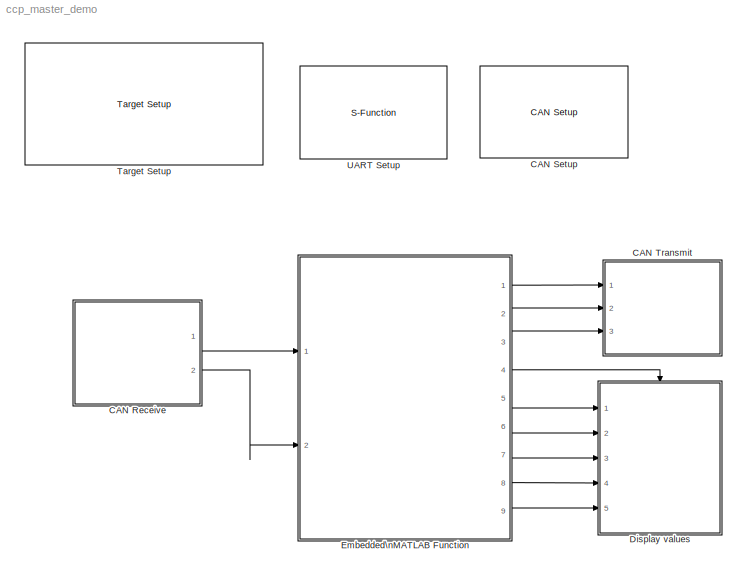
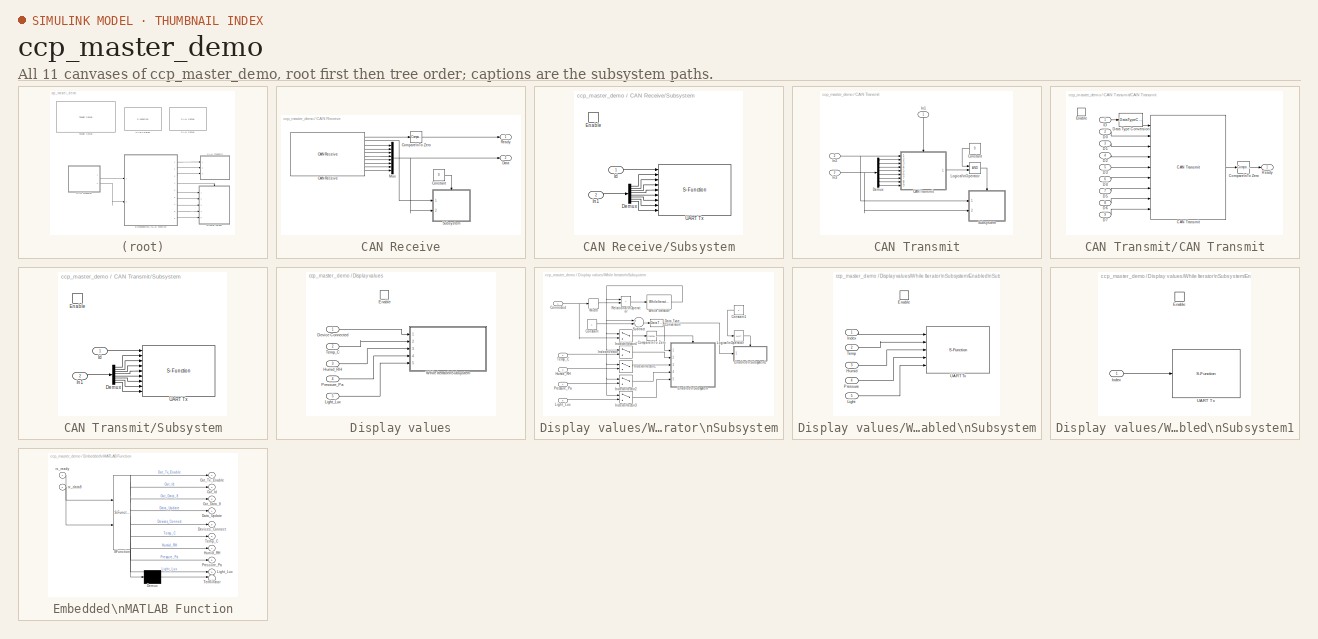
[diagram: thumbnail index - all 11 canvases of the model, root first then tree order]
MODEL ccp_master_demo
KIND model
CONFIG PreLoadFcn = waijung.modelPreload; % Required for working with Waijung Blockset. Do not remove.
BLOCK [SubSystem] CAN Receive
  FunctionWithSeparateData = off
  MaskHideContents = off
  MinAlgLoopOccurrences = off
  Opaque = off
  Ports = [0, 2]
  PropExecContextOutsideSubsystem = off
  RTWSystemCode = Auto
  RequestExecContextInheritance = off
BLOCK [Reference] CAN Receive/CAN Receive  REF=stm32f0_can_lib/CAN Receive
  Ports = [0, 10]
  SourceBlock = stm32f0_can_lib/CAN Receive
  SourceType = stm32f0_can
  blockid = CANReceiveCANReceive
  buffersize = 8
  canmodule = 1
  compat = 0
  conf = Rx
  confstr = [\"Standard\",\"Mask\",\"0\",\"0\",\"off\",\"uint8\",\"uint8\",\"uint8\",\"uint8\",\"uint8\",\"uint8\",\"uint8\",\"uint8\",\"8\",\"0\",\"0\",\"0\",\"4\"]
  data0type = uint8
  data1type = uint8
  data2type = uint8
  data3type = uint8
  data4type = uint8
  data5type = uint8
  data6type = uint8
  data7type = uint8
  datatype = single
  enableisr = off
  filtertype = Mask
  id = 0
  idmask = 0
  idtype = Standard
  inputarray = []
  inputlabelarray = {}
  outputarray = [ 5, 7, 3, 3, 3, 3, 3, 3, 3, 3]
  outputlabelarray = { 'Msg Pending','ID', 'D0 (uint8)', 'D1 (uint8)', 'D2 (uint8)', 'D3 (uint8)', 'D4 (uint8)', 'D5 (uint8)', 'D6 (uint8)', 'D7 (uint8)' }
  sampletime = 0.01
  sampletimestr = 0.01
  usedlc = off
BLOCK [Reference] CAN Receive/Compare\nTo Zero  REF=simulink/Logic and Bit\nOperations/Compare\nTo Zero
  FunctionWithSeparateData = off
  LogicOutDataTypeMode = uint8
  Ports = [1, 1]
  RTWMemSecDataConstants = Inherit from model
  RTWMemSecDataInternal = Inherit from model
  RTWMemSecDataParameters = Inherit from model
  RTWMemSecFuncExecute = Inherit from model
  RTWMemSecFuncInitTerm = Inherit from model
  ShowPortLabels = FromPortIcon
  SourceBlock = simulink/Logic and Bit\nOperations/Compare\nTo Zero
  SourceType = Compare To Zero
  SystemSampleTime = -1
  ZeroCross = off
  relop = ~=
BLOCK [Constant] CAN Receive/Constant
  OutDataType = fixdt(1, 16)
  OutDataTypeMode = uint8
  OutDataTypeStr = uint8
  OutScaling = 2^0
  Value = 0
BLOCK [Outport] CAN Receive/Data
  IconDisplay = Port number
  Port = 2
BLOCK [Mux] CAN Receive/Mux
  DisplayOption = bar
  Inputs = 8
  Ports = [8, 1]
BLOCK [Outport] CAN Receive/Ready
  IconDisplay = Port number
BLOCK [SubSystem] CAN Receive/Subsystem
  FunctionWithSeparateData = off
  MaskHideContents = off
  MinAlgLoopOccurrences = off
  Opaque = off
  Ports = [2, 0, 1]
  PropExecContextOutsideSubsystem = off
  RTWSystemCode = Auto
  RequestExecContextInheritance = off
BLOCK [Demux] CAN Receive/Subsystem/Demux
  DisplayOption = bar
  Outputs = 8
  Ports = [1, 8]
BLOCK [EnablePort] CAN Receive/Subsystem/Enable
  Ports = []
BLOCK [Inport] CAN Receive/Subsystem/Id
  IconDisplay = Port number
BLOCK [Inport] CAN Receive/Subsystem/In1
  IconDisplay = Port number
  Port = 2
BLOCK [S-Function] CAN Receive/Subsystem/UART Tx
  EnableBusSupport = off
  FunctionName = stm32f0_uart
  MaskCallbackString = stm32f0_uart_callback('conf');|stm32f0_uart_callback('uartmodule');|||||||stm32f0_uart_callback('flowcontrol');|||stm32f0_uart_callback('advanceoptions');|||stm32f0_uart_callback('conf');|stm32f0_uart_callback('conf');|stm32f0_uart_callback('binheader');|stm32f0_uart_callback('binterminator');|||||||||stm32f0_uart_callback('asciiformat');|||stm32f0_uart_callback('storagename');|||stm32f0_uart_call...<+176ch>  <repeated x5 — deduplicated; at blocks: UART Tx, UART Setup>
  MaskDescription = UART Module\n - Select module corresponding to \"UART Setup\" block.\nTransfer\n - Blocking: after write DMA buffer, the block wait until buffer empty.\n - Non-Blocking: the block will not wait for buffer empty.\nPacket mode:\n - Ascii: sending data is ascii, Ascii format + End of packet.\n - Binary: sending data is binary format, Header + Data + Terminator\n - String Buffer: Volatile Data Storage...<+256ch>  <repeated x4 — deduplicated; at blocks: UART Tx>
  MaskDisplay = text(0.95, 0.5, 'Module: USART1_Tx\\nPacket: Ascii\\nTransfer: Non-Blocking\\nTs (sec): 0.01','ver','middle','hor','right'); port_label('input', 1,'%u'); port_label('input', 2,'%X'); port_label('input', 3,'%X'); port_label('input', 4,'%X'); port_label('input', 5,'%X'); port_label('input', 6,'%X'); port_label('input', 7,'%X'); port_label('input', 8,'%X'); port_label('input', 9,'%X');
  MaskEnableString = on,on,on,on,on,on,on,on,on,off,off,on,on,on,on,on,on,on,on,on,on,on,on,on,on,on,on,on,on,on,on,on,on,on,on,on,on,off,on,on,on,on,on,on,on,on,on,on,on,on
  MaskHelp = web(fullfile(waijungdocroot,'stm32f0_uart_tx.htm'), '-browser')
  MaskIconFrame = on
  MaskIconOpaque = on
  MaskIconRotate = none
  MaskIconUnits = normalized
  MaskInitialization = stm32f0_uart_callback('init');
  MaskPortRotate = default
  MaskPromptString = Configuration|UART Module|Baud rate (bps)|Data bits|Parity|Stop bit|Tx pin|Rx pin|Hardware flow control|HW Flow control, CTS Pin|HW Flow control, RTS Pin|Advance options|Rx buffer size (bytes)|Tx buffer size (bytes)|Transfer|Packet mode|Binary header (example: '7E 7E')|Binary terminator (example: '03 03')|Number of data port, type DOUBLE|Number of data port, type SINGLE|Number of data port, type I...<+631ch>  <repeated x5 — deduplicated; at blocks: UART Tx, UART Setup>
  MaskSelfModifiable = on
  MaskStyleString = popup(Setup|Tx|Rx),popup(1|2|3|4),edit,popup(8),popup(No|Odd|Even),popup(0.5|1|1.5|2),popup(Not used|A9|B6),popup(Not used|A10|B7),popup(None|RTS|CTS|RTS/CTS),popup(Not used|A11),popup(Not used|A12),checkbox,popup(16|32|64|128|256|512),popup(16|32|64|128|256|512),popup(Blocking|Non-Blocking),popup(Ascii|Binary|String Buffer),edit,edit,edit,edit,edit,edit,edit,edit,edit,edit,edit,popup(CR (0x0D - \...<+259ch>  <repeated x5 — deduplicated; at blocks: UART Tx, UART Setup>
  MaskTabNameString = ,,,,,,,,,,,,,,,,,,,,,,,,,,,,,,,,,,,,,,,,,,,,,,,,,
  MaskToolTipString = on,on,on,on,on,on,on,on,on,on,on,on,on,on,on,on,on,on,on,on,on,on,on,on,on,on,on,on,on,on,on,on,on,on,on,on,on,on,on,on,on,on,on,on,on,on,on,on,on,on
  MaskTunableValueString = off,off,off,off,off,off,off,off,off,off,off,off,off,off,off,off,off,off,off,off,off,off,off,off,off,off,off,off,off,off,off,off,off,off,off,off,off,off,off,off,off,off,off,off,off,off,off,off,off,off  <repeated x5 — deduplicated; at blocks: UART Tx, UART Setup>
  MaskType = stm32f0_uart
  MaskValueString = Tx|1|115200|8|No|1|A9|A10|None|Not used|Not used|off|64|64|Non-Blocking|Ascii|'7E 7E'|'03 03'|0|0|0|0|0|0|0|2|'Rx, Id=%u: %X,%X,%X,%X,%X,%X,%X,%X'|CR (0x0D - \"\\r\")|CRLF (0x0D 0x0A - \"<path>")|<empty>||Rx, Id=%u: %X,%X,%X,%X,%X,%X,%X,%X\\r\\n|inf|off|de|fff,ff,sdfsd|0|CANReceiveSubsystemUARTTx|[ -1 -1 -1 -1 -1 -1 -1 -1 -1]|[]|{ '%u' '%X' '%X' '%X' '%X' '%X' '%X' '%X' '%X'}|[]|[]|{}|0|[\"1\", \...<+358ch>
  MaskVarAliasString = ,,,,,,,,,,,,,,,,,,,,,,,,,,,,,,,,,,,,,,,,,,,,,,,,,
  MaskVariables = conf=&1;uartmodule=&2;baudrate=@3;databits=@4;parity=&5;stopbit=&6;remaptxpin=&7;remaprxpin=&8;flowcontrol=&9;remapctspin=&10;remaprtspin=&11;advanceoptions=@12;rxbuffersize=@13;txbuffersize=@14;transfer=&15;packetmode=&16;binheader=&17;binterminator=&18;porttype_double=@19;porttype_single=@20;porttype_int8=@21;porttype_uint8=@22;porttype_int16=@23;porttype_uint16=@24;porttype_int32=@25;porttype_u...<+445ch>  <repeated x5 — deduplicated; at blocks: UART Tx, UART Setup>
  MaskVisibilityString = off,on,off,off,off,off,off,off,off,off,off,off,off,off,on,on,off,off,off,off,off,off,off,off,off,off,on,off,on,off,off,off,on,on,off,off,off,off,off,off,off,off,off,off,off,off,off,off,off,off  <repeated x4 — deduplicated; at blocks: UART Tx>
  Parameters = conf,inputporttype,inputportwidth,outputporttype,outputportwidth,asciiheader,optionstring,headerstring,terminatorstring,asciidatatypestring,sampletime,blockid
  Ports = [9]
BLOCK [Reference] CAN Setup  REF=stm32f0_can_lib/CAN Setup
  Ports = []
  SourceBlock = stm32f0_can_lib/CAN Setup
  SourceType = stm32f0_can
  advance = off
  autoretransmission = Disable
  bitrate = 250000
  bitrate_select = 250000
  blockid = CANSetup
  brp = 8
  bs1 = 15tq
  bs2 = 8tq
  canmodule = 1
  compat = 0
  conf = Setup
  confstr = [\"250000\",\"8\",\"B\",\"9\",\"B\",\"8\",\"1tq\",\"15tq\",\"8tq\",\"ENABLE\"]
  inputarray = []
  inputlabelarray = {}
  lastmodule = 1
  outputarray = []
  outputlabelarray = {}
  presc = 8
  remaprxpin = B8
  remaptxpin = B9
  rxpinstr = 8
  rxportstr = B
  sampletime = -1
  sampletimestr = 0.001
  sjw = 1tq
  timingconf = Prescaler
  tq = 1.6667e-007
  txpinstr = 9
  txportstr = B
BLOCK [SubSystem] CAN Transmit
  FunctionWithSeparateData = off
  MaskHideContents = off
  MinAlgLoopOccurrences = off
  Opaque = off
  Ports = [3]
  PropExecContextOutsideSubsystem = off
  RTWSystemCode = Auto
  RequestExecContextInheritance = off
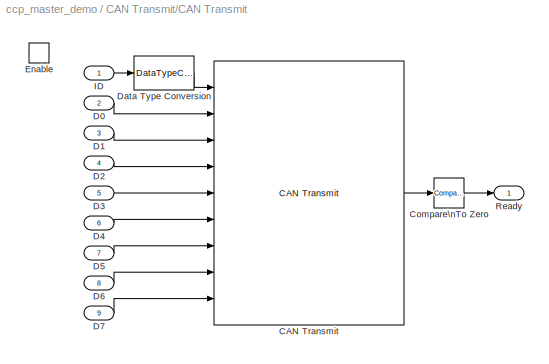
BLOCK [SubSystem] CAN Transmit/CAN Transmit
  FunctionWithSeparateData = off
  MaskHideContents = off
  MinAlgLoopOccurrences = off
  Opaque = off
  Ports = [9, 1, 1]
  PropExecContextOutsideSubsystem = off
  RTWSystemCode = Auto
  RequestExecContextInheritance = off
BLOCK [Reference] CAN Transmit/CAN Transmit/CAN Transmit  REF=stm32f0_can_lib/CAN Transmit
  Ports = [9, 1]
  SourceBlock = stm32f0_can_lib/CAN Transmit
  SourceType = stm32f0_can
  blockid = CANTransmitCANTransmitCANTransmit
  canmodule = 1
  compat = 0
  conf = Tx
  confstr = [\"Blocking\",\"0.5\",\"Standard\",\"off\",\"0\",\"on\",\"8\",\"on\",\"uint8\",\"uint8\",\"uint8\",\"uint8\",\"uint8\",\"uint8\",\"uint8\",\"uint8\"]
  data0type = uint8
  data1type = uint8
  data2type = uint8
  data3type = uint8
  data4type = uint8
  data5type = uint8
  data6type = uint8
  data7type = uint8
  datatype = single
  dlc = 8
  enablestatus = on
  id = 0
  idtype = Standard
  inputarray = [ -1, 3, 3, 3, 3, 3, 3, 3, 3]
  inputlabelarray = { 'ID', 'D0 (uint8)', 'D1 (uint8)', 'D2 (uint8)', 'D3 (uint8)', 'D4 (uint8)', 'D5 (uint8)', 'D6 (uint8)', 'D7 (uint8)' }
  outputarray = [7]
  outputlabelarray = {'Status'}
  sampletime = -1
  sampletimestr = 0.01
  specificdlc = on
  specificid = off
  timeout = 0.5
  transfer = Blocking
BLOCK [Reference] CAN Transmit/CAN Transmit/Compare\nTo Zero  REF=simulink/Logic and Bit\nOperations/Compare\nTo Zero
  FunctionWithSeparateData = off
  LogicOutDataTypeMode = uint8
  Ports = [1, 1]
  RTWMemSecDataConstants = Inherit from model
  RTWMemSecDataInternal = Inherit from model
  RTWMemSecDataParameters = Inherit from model
  RTWMemSecFuncExecute = Inherit from model
  RTWMemSecFuncInitTerm = Inherit from model
  ShowPortLabels = FromPortIcon
  SourceBlock = simulink/Logic and Bit\nOperations/Compare\nTo Zero
  SourceType = Compare To Zero
  SystemSampleTime = -1
  ZeroCross = off
  relop = ==
BLOCK [Inport] CAN Transmit/CAN Transmit/D0
  IconDisplay = Port number
  Port = 2
BLOCK [Inport] CAN Transmit/CAN Transmit/D1
  IconDisplay = Port number
  Port = 3
BLOCK [Inport] CAN Transmit/CAN Transmit/D2
  IconDisplay = Port number
  Port = 4
BLOCK [Inport] CAN Transmit/CAN Transmit/D3
  IconDisplay = Port number
  Port = 5
BLOCK [Inport] CAN Transmit/CAN Transmit/D4
  IconDisplay = Port number
  Port = 6
BLOCK [Inport] CAN Transmit/CAN Transmit/D5
  IconDisplay = Port number
  Port = 7
BLOCK [Inport] CAN Transmit/CAN Transmit/D6
  IconDisplay = Port number
  Port = 8
BLOCK [Inport] CAN Transmit/CAN Transmit/D7
  IconDisplay = Port number
  Port = 9
BLOCK [DataTypeConversion] CAN Transmit/CAN Transmit/Data Type Conversion
  OutDataType = fixdt(1, 16)
  OutScaling = 2^0
  RndMeth = Floor
  SaturateOnIntegerOverflow = off
BLOCK [EnablePort] CAN Transmit/CAN Transmit/Enable
  Ports = []
BLOCK [Inport] CAN Transmit/CAN Transmit/ID
  IconDisplay = Port number
BLOCK [Outport] CAN Transmit/CAN Transmit/Ready
  IconDisplay = Port number
  OutDataType = fixdt(1, 16)
  OutScaling = 2^0
BLOCK [Constant] CAN Transmit/Constant
  OutDataType = fixdt(1, 16)
  OutDataTypeMode = uint8
  OutDataTypeStr = uint8
  OutScaling = 2^0
  Value = 0
BLOCK [Demux] CAN Transmit/Demux
  DisplayOption = bar
  Outputs = 8
  Ports = [1, 8]
BLOCK [Inport] CAN Transmit/In1
  IconDisplay = Port number
BLOCK [Inport] CAN Transmit/In2
  IconDisplay = Port number
  Port = 2
BLOCK [Inport] CAN Transmit/In3
  IconDisplay = Port number
  Port = 3
BLOCK [Logic] CAN Transmit/Logical\nOperator
  AllPortsSameDT = off
  LogicDataType = fixdt(0, 8)
  OutDataTypeMode = boolean
  OutDataTypeStr = boolean
  Ports = [2, 1]
BLOCK [SubSystem] CAN Transmit/Subsystem
  FunctionWithSeparateData = off
  MaskHideContents = off
  MinAlgLoopOccurrences = off
  Opaque = off
  Ports = [2, 0, 1]
  PropExecContextOutsideSubsystem = off
  RTWSystemCode = Auto
  RequestExecContextInheritance = off
BLOCK [Demux] CAN Transmit/Subsystem/Demux
  DisplayOption = bar
  Outputs = 8
  Ports = [1, 8]
BLOCK [EnablePort] CAN Transmit/Subsystem/Enable
  Ports = []
BLOCK [Inport] CAN Transmit/Subsystem/Id
  IconDisplay = Port number
BLOCK [Inport] CAN Transmit/Subsystem/In1
  IconDisplay = Port number
  Port = 2
BLOCK [S-Function] CAN Transmit/Subsystem/UART Tx
  EnableBusSupport = off
  FunctionName = stm32f0_uart
  MaskDisplay = text(0.95, 0.5, 'Module: USART1_Tx\\nPacket: Ascii\\nTransfer: Non-Blocking\\nTs (sec): 0.01','ver','middle','hor','right'); port_label('input', 1,'%u'); port_label('input', 2,'%X'); port_label('input', 3,'%X'); port_label('input', 4,'%X'); port_label('input', 5,'%X'); port_label('input', 6,'%X'); port_label('input', 7,'%X'); port_label('input', 8,'%X'); port_label('input', 9,'%X');
  MaskEnableString = on,on,on,on,on,on,on,on,on,off,off,on,on,on,on,on,on,on,on,on,on,on,on,on,on,on,on,on,on,on,on,on,on,on,on,on,on,off,on,on,on,on,on,on,on,on,on,on,on,on
  MaskHelp = web(fullfile(waijungdocroot,'stm32f0_uart_tx.htm'), '-browser')
  MaskIconFrame = on
  MaskIconOpaque = on
  MaskIconRotate = none
  MaskIconUnits = normalized
  MaskInitialization = stm32f0_uart_callback('init');
  MaskPortRotate = default
  MaskSelfModifiable = on
  MaskTabNameString = ,,,,,,,,,,,,,,,,,,,,,,,,,,,,,,,,,,,,,,,,,,,,,,,,,
  MaskToolTipString = on,on,on,on,on,on,on,on,on,on,on,on,on,on,on,on,on,on,on,on,on,on,on,on,on,on,on,on,on,on,on,on,on,on,on,on,on,on,on,on,on,on,on,on,on,on,on,on,on,on
  MaskType = stm32f0_uart
  MaskValueString = Tx|1|115200|8|No|1|A9|A10|None|Not used|Not used|off|64|64|Non-Blocking|Ascii|'7E 7E'|'03 03'|0|0|0|0|0|0|0|2|'Tx, Id=%u: %X,%X,%X,%X,%X,%X,%X,%X'|CR (0x0D - \"\\r\")|CRLF (0x0D 0x0A - \"<path>")|<empty>||Tx, Id=%u: %X,%X,%X,%X,%X,%X,%X,%X\\r\\n|inf|off|de|fff,ff,sdfsd|0|CANTransmitSubsystemUARTTx|[ -1 -1 -1 -1 -1 -1 -1 -1 -1]|[]|{ '%u' '%X' '%X' '%X' '%X' '%X' '%X' '%X' '%X'}|[]|[]|{}|0|[\"1\", ...<+359ch>
  MaskVarAliasString = ,,,,,,,,,,,,,,,,,,,,,,,,,,,,,,,,,,,,,,,,,,,,,,,,,
  Parameters = conf,inputporttype,inputportwidth,outputporttype,outputportwidth,asciiheader,optionstring,headerstring,terminatorstring,asciidatatypestring,sampletime,blockid
  Ports = [9]
BLOCK [SubSystem] Display values
  FunctionWithSeparateData = off
  MaskHideContents = off
  MinAlgLoopOccurrences = off
  Opaque = off
  Ports = [5, 0, 1]
  PropExecContextOutsideSubsystem = off
  RTWSystemCode = Auto
  RequestExecContextInheritance = off
  TreatAsAtomicUnit = on
BLOCK [Inport] Display values/Device Connected
  IconDisplay = Port number
  OutDataType = fixdt(1, 16)
  OutScaling = 2^0
BLOCK [EnablePort] Display values/Enable
  Ports = []
BLOCK [Inport] Display values/Humid_RH
  IconDisplay = Port number
  OutDataType = fixdt(1, 16)
  OutScaling = 2^0
  Port = 3
BLOCK [Inport] Display values/Light_Lux
  IconDisplay = Port number
  OutDataType = fixdt(1, 16)
  OutScaling = 2^0
  Port = 5
BLOCK [Inport] Display values/Pressure_Pa
  IconDisplay = Port number
  OutDataType = fixdt(1, 16)
  OutScaling = 2^0
  Port = 4
BLOCK [Inport] Display values/Temp_C
  IconDisplay = Port number
  OutDataType = fixdt(1, 16)
  OutScaling = 2^0
  Port = 2
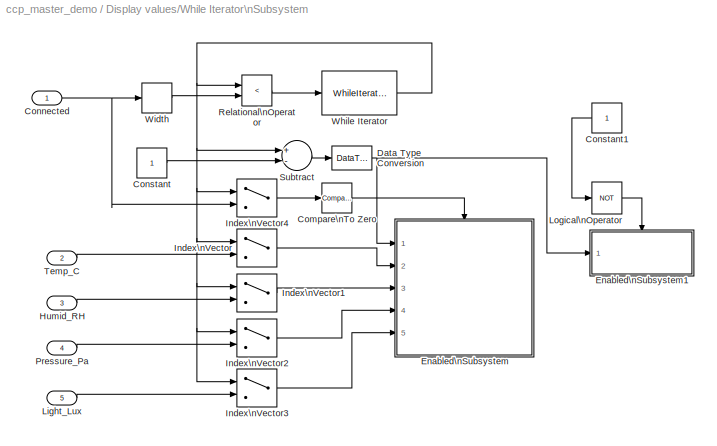
BLOCK [SubSystem] Display values/While Iterator\nSubsystem
  FunctionWithSeparateData = off
  MaskHideContents = off
  MinAlgLoopOccurrences = off
  Opaque = off
  Ports = [5]
  PropExecContextOutsideSubsystem = off
  RTWSystemCode = Auto
  RequestExecContextInheritance = off
  TreatAsAtomicUnit = on
BLOCK [Reference] Display values/While Iterator\nSubsystem/Compare\nTo Zero  REF=simulink/Logic and Bit\nOperations/Compare\nTo Zero
  FunctionWithSeparateData = off
  LogicOutDataTypeMode = uint8
  Ports = [1, 1]
  RTWMemSecDataConstants = Inherit from model
  RTWMemSecDataInternal = Inherit from model
  RTWMemSecDataParameters = Inherit from model
  RTWMemSecFuncExecute = Inherit from model
  RTWMemSecFuncInitTerm = Inherit from model
  ShowPortLabels = FromPortIcon
  SourceBlock = simulink/Logic and Bit\nOperations/Compare\nTo Zero
  SourceType = Compare To Zero
  SystemSampleTime = -1
  ZeroCross = off
  relop = >
BLOCK [Inport] Display values/While Iterator\nSubsystem/Connected
  IconDisplay = Port number
  OutDataType = fixdt(1, 16)
  OutScaling = 2^0
BLOCK [Constant] Display values/While Iterator\nSubsystem/Constant
  OutDataType = fixdt(1, 16)
  OutDataTypeMode = int8
  OutDataTypeStr = int8
  OutScaling = 2^0
BLOCK [Constant] Display values/While Iterator\nSubsystem/Constant1
  OutDataType = fixdt(1, 16)
  OutDataTypeMode = uint8
  OutDataTypeStr = uint8
  OutScaling = 2^0
BLOCK [DataTypeConversion] Display values/While Iterator\nSubsystem/Data Type Conversion
  OutDataType = fixdt(1, 16)
  OutScaling = 2^0
  RndMeth = Floor
  SaturateOnIntegerOverflow = off
BLOCK [SubSystem] Display values/While Iterator\nSubsystem/Enabled\nSubsystem
  FunctionWithSeparateData = off
  MaskHideContents = off
  MinAlgLoopOccurrences = off
  Opaque = off
  Ports = [5, 0, 1]
  PropExecContextOutsideSubsystem = off
  RTWSystemCode = Auto
  RequestExecContextInheritance = off
  TreatAsAtomicUnit = on
BLOCK [EnablePort] Display values/While Iterator\nSubsystem/Enabled\nSubsystem/Enable
  Ports = []
BLOCK [Inport] Display values/While Iterator\nSubsystem/Enabled\nSubsystem/Humid
  IconDisplay = Port number
  OutDataType = fixdt(1, 16)
  OutScaling = 2^0
  Port = 3
BLOCK [Inport] Display values/While Iterator\nSubsystem/Enabled\nSubsystem/Index
  IconDisplay = Port number
  OutDataType = fixdt(1, 16)
  OutScaling = 2^0
BLOCK [Inport] Display values/While Iterator\nSubsystem/Enabled\nSubsystem/Light
  IconDisplay = Port number
  OutDataType = fixdt(1, 16)
  OutScaling = 2^0
  Port = 5
BLOCK [Inport] Display values/While Iterator\nSubsystem/Enabled\nSubsystem/Pressure
  IconDisplay = Port number
  OutDataType = fixdt(1, 16)
  OutScaling = 2^0
  Port = 4
BLOCK [Inport] Display values/While Iterator\nSubsystem/Enabled\nSubsystem/Temp
  IconDisplay = Port number
  OutDataType = fixdt(1, 16)
  OutScaling = 2^0
  Port = 2
BLOCK [S-Function] Display values/While Iterator\nSubsystem/Enabled\nSubsystem/UART Tx
  EnableBusSupport = off
  FunctionName = stm32f0_uart
  MaskDisplay = text(0.95, 0.5, 'Module: USART1_Tx\\nPacket: Ascii\\nTransfer: Non-Blocking\\nTs (sec): -1','ver','middle','hor','right'); port_label('input', 1,'%u'); port_label('input', 2,'%f'); port_label('input', 3,'%f'); port_label('input', 4,'%f'); port_label('input', 5,'%f');
  MaskEnableString = on,on,on,on,on,on,on,on,on,off,off,on,on,on,on,on,on,on,on,on,on,on,on,on,on,on,on,on,on,on,on,on,on,on,on,on,on,off,on,on,on,on,on,on,on,on,on,on,on,on
  MaskHelp = web(fullfile(waijungdocroot,'stm32f0_uart_tx.htm'), '-browser')
  MaskIconFrame = on
  MaskIconOpaque = on
  MaskIconRotate = none
  MaskIconUnits = normalized
  MaskInitialization = stm32f0_uart_callback('init');
  MaskPortRotate = default
  MaskSelfModifiable = on
  MaskTabNameString = ,,,,,,,,,,,,,,,,,,,,,,,,,,,,,,,,,,,,,,,,,,,,,,,,,
  MaskToolTipString = on,on,on,on,on,on,on,on,on,on,on,on,on,on,on,on,on,on,on,on,on,on,on,on,on,on,on,on,on,on,on,on,on,on,on,on,on,on,on,on,on,on,on,on,on,on,on,on,on,on
  MaskType = stm32f0_uart
  MaskValueString = Tx|1|115200|8|No|1|A9|A10|None|Not used|Not used|off|64|64|Non-Blocking|Ascii|'7E 7E'|'03 03'|0|0|0|0|0|0|0|2|'Device %u: Temp=%1.2fC, Humid=%1.2f%%, Pressure=%1.2fPa, Light=%1.2fLux'|CR (0x0D - \"\\r\")|CRLF (0x0D 0x0A - \"<path>")|<empty>||Device %u: Temp=%1.2fC, Humid=%1.2f%%, Pressure=%1.2fPa, Light=%1.2fLux\\r\\n|inf|off|de|fff,ff,sdfsd|0|DisplayvaluesWhileIteratorSubsystemEnabledSubsystemUA...<+368ch>
  MaskVarAliasString = ,,,,,,,,,,,,,,,,,,,,,,,,,,,,,,,,,,,,,,,,,,,,,,,,,
  Parameters = conf,inputporttype,inputportwidth,outputporttype,outputportwidth,asciiheader,optionstring,headerstring,terminatorstring,asciidatatypestring,sampletime,blockid
  Ports = [5]
BLOCK [SubSystem] Display values/While Iterator\nSubsystem/Enabled\nSubsystem1
  FunctionWithSeparateData = off
  MaskHideContents = off
  MinAlgLoopOccurrences = off
  Opaque = off
  Ports = [1, 0, 1]
  PropExecContextOutsideSubsystem = off
  RTWSystemCode = Auto
  RequestExecContextInheritance = off
  TreatAsAtomicUnit = on
BLOCK [EnablePort] Display values/While Iterator\nSubsystem/Enabled\nSubsystem1/Enable
  Ports = []
BLOCK [Inport] Display values/While Iterator\nSubsystem/Enabled\nSubsystem1/Index
  IconDisplay = Port number
  OutDataType = fixdt(1, 16)
  OutScaling = 2^0
BLOCK [S-Function] Display values/While Iterator\nSubsystem/Enabled\nSubsystem1/UART Tx
  EnableBusSupport = off
  FunctionName = stm32f0_uart
  MaskDisplay = text(0.95, 0.5, 'Module: USART1_Tx\\nPacket: Ascii\\nTransfer: Non-Blocking\\nTs (sec): -1','ver','middle','hor','right'); port_label('input', 1,'%u');
  MaskEnableString = on,on,on,on,on,on,on,on,on,off,off,on,on,on,on,on,on,on,on,on,on,on,on,on,on,on,on,on,on,on,on,on,on,on,on,on,on,off,on,on,on,on,on,on,on,on,on,on,on,on
  MaskHelp = web(fullfile(waijungdocroot,'stm32f0_uart_tx.htm'), '-browser')
  MaskIconFrame = on
  MaskIconOpaque = on
  MaskIconRotate = none
  MaskIconUnits = normalized
  MaskInitialization = stm32f0_uart_callback('init');
  MaskPortRotate = default
  MaskSelfModifiable = on
  MaskTabNameString = ,,,,,,,,,,,,,,,,,,,,,,,,,,,,,,,,,,,,,,,,,,,,,,,,,
  MaskToolTipString = on,on,on,on,on,on,on,on,on,on,on,on,on,on,on,on,on,on,on,on,on,on,on,on,on,on,on,on,on,on,on,on,on,on,on,on,on,on,on,on,on,on,on,on,on,on,on,on,on,on
  MaskType = stm32f0_uart
  MaskValueString = Tx|1|115200|8|No|1|A9|A10|None|Not used|Not used|off|64|64|Non-Blocking|Ascii|'7E 7E'|'03 03'|0|0|0|0|0|0|0|2|'Device %u: Error or disconnected'|CR (0x0D - \"\\r\")|CRLF (0x0D 0x0A - \"<path>")|<empty>||Device %u: Error or disconnected\\r\\n|inf|off|de|fff,ff,sdfsd|0|DisplayvaluesWhileIteratorSubsystemEnabledSubsystem1UARTTx|[ -1]|[]|{ '%u'}|[]|[]|{}|0|[\"1\", \"1\", \"A\", \"9\", \"1\", \"A\", \...<+219ch>
  MaskVarAliasString = ,,,,,,,,,,,,,,,,,,,,,,,,,,,,,,,,,,,,,,,,,,,,,,,,,
  Parameters = conf,inputporttype,inputportwidth,outputporttype,outputportwidth,asciiheader,optionstring,headerstring,terminatorstring,asciidatatypestring,sampletime,blockid
  Ports = [1]
BLOCK [Inport] Display values/While Iterator\nSubsystem/Humid_RH
  IconDisplay = Port number
  OutDataType = fixdt(1, 16)
  OutScaling = 2^0
  Port = 3
BLOCK [MultiPortSwitch] Display values/While Iterator\nSubsystem/Index\nVector
  InputSameDT = off
  Inputs = 1
  OutDataType = fixdt(1, 16)
  OutScaling = 2^0
  Ports = [2, 1]
  SaturateOnIntegerOverflow = off
BLOCK [MultiPortSwitch] Display values/While Iterator\nSubsystem/Index\nVector1
  InputSameDT = off
  Inputs = 1
  OutDataType = fixdt(1, 16)
  OutScaling = 2^0
  Ports = [2, 1]
  SaturateOnIntegerOverflow = off
BLOCK [MultiPortSwitch] Display values/While Iterator\nSubsystem/Index\nVector2
  InputSameDT = off
  Inputs = 1
  OutDataType = fixdt(1, 16)
  OutScaling = 2^0
  Ports = [2, 1]
  SaturateOnIntegerOverflow = off
BLOCK [MultiPortSwitch] Display values/While Iterator\nSubsystem/Index\nVector3
  InputSameDT = off
  Inputs = 1
  OutDataType = fixdt(1, 16)
  OutScaling = 2^0
  Ports = [2, 1]
  SaturateOnIntegerOverflow = off
BLOCK [MultiPortSwitch] Display values/While Iterator\nSubsystem/Index\nVector4
  InputSameDT = off
  Inputs = 1
  OutDataType = fixdt(1, 16)
  OutScaling = 2^0
  Ports = [2, 1]
  SaturateOnIntegerOverflow = off
BLOCK [Inport] Display values/While Iterator\nSubsystem/Light_Lux
  IconDisplay = Port number
  OutDataType = fixdt(1, 16)
  OutScaling = 2^0
  Port = 5
BLOCK [Logic] Display values/While Iterator\nSubsystem/Logical\nOperator
  AllPortsSameDT = off
  LogicDataType = fixdt(0, 8)
  Operator = NOT
  OutDataTypeMode = boolean
  OutDataTypeStr = boolean
  Ports = [1, 1]
BLOCK [Inport] Display values/While Iterator\nSubsystem/Pressure_Pa
  IconDisplay = Port number
  OutDataType = fixdt(1, 16)
  OutScaling = 2^0
  Port = 4
BLOCK [RelationalOperator] Display values/While Iterator\nSubsystem/Relational\nOperator
  InputSameDT = off
  LogicDataType = fixdt(0, 8)
  LogicOutDataTypeMode = boolean
  Operator = <
  OutDataTypeStr = boolean
BLOCK [Sum] Display values/While Iterator\nSubsystem/Subtract
  InputSameDT = off
  Inputs = +-
  OutDataType = fixdt(1, 16)
  OutDataTypeMode = Inherit via internal rule
  OutDataTypeStr = Inherit: Inherit via internal rule
  OutScaling = 2^-10
  Ports = [2, 1]
  SaturateOnIntegerOverflow = off
BLOCK [Inport] Display values/While Iterator\nSubsystem/Temp_C
  IconDisplay = Port number
  OutDataType = fixdt(1, 16)
  OutScaling = 2^0
  Port = 2
BLOCK [WhileIterator] Display values/While Iterator\nSubsystem/While Iterator
  MaxIters = 32
  OutputDataType = int8
  Ports = [1, 1]
  ShowIterationPort = on
  WhileBlockType = do-while
BLOCK [Width] Display values/While Iterator\nSubsystem/Width
  DataType = int8
BLOCK [SubSystem] Embedded\nMATLAB Function
  FunctionWithSeparateData = off
  MaskDescription = Embedded MATLAB block
  MaskDisplay = disp('fcn');
  MaskHideContents = off
  MaskIconFrame = on
  MaskIconOpaque = off
  MaskIconRotate = none
  MaskIconUnits = autoscale
  MaskPortRotate = default
  MaskSelfModifiable = on
  MaskType = Stateflow
  MinAlgLoopOccurrences = off
  Opaque = off
  PermitHierarchicalResolution = ExplicitOnly
  Ports = [2, 9]
  PropExecContextOutsideSubsystem = off
  RTWSystemCode = Auto
  RequestExecContextInheritance = off
BLOCK [Demux] Embedded\nMATLAB Function/ Demux 
  Outputs = 1
  Ports = [1, 1]
BLOCK [S-Function] Embedded\nMATLAB Function/ SFunction 
  EnableBusSupport = on
  FunctionName = sf_sfun
  PortCounts = [2 10]
  Ports = [2, 10]
  Tag = Stateflow S-Function ccp_master_demo 2
BLOCK [Terminator] Embedded\nMATLAB Function/ Terminator 
BLOCK [Outport] Embedded\nMATLAB Function/Data_Update
  IconDisplay = Port number
  Port = 4
BLOCK [Outport] Embedded\nMATLAB Function/Devices_Connect
  IconDisplay = Port number
  Port = 5
BLOCK [Outport] Embedded\nMATLAB Function/Humid_RH
  IconDisplay = Port number
  Port = 7
BLOCK [Outport] Embedded\nMATLAB Function/Light_Lux
  IconDisplay = Port number
  Port = 9
BLOCK [Outport] Embedded\nMATLAB Function/Out_Data_8
  IconDisplay = Port number
  Port = 3
BLOCK [Outport] Embedded\nMATLAB Function/Out_Id
  IconDisplay = Port number
  Port = 2
BLOCK [Outport] Embedded\nMATLAB Function/Out_Tx_Enable
  IconDisplay = Port number
  OutDataType = sfix(16)
  OutScaling = 2^0
BLOCK [Outport] Embedded\nMATLAB Function/Pressure_Pa
  IconDisplay = Port number
  Port = 8
BLOCK [Outport] Embedded\nMATLAB Function/Temp_C
  IconDisplay = Port number
  Port = 6
BLOCK [Inport] Embedded\nMATLAB Function/rx_data8
  IconDisplay = Port number
  Port = 2
BLOCK [Inport] Embedded\nMATLAB Function/rx_ready
  IconDisplay = Port number
  OutDataType = sfix(16)
  OutScaling = 2^0
BLOCK [Reference] Target Setup  REF=stm32f0_device_config_lib/Target Setup
  Ports = []
  Priority = 100
  SourceBlock = stm32f0_device_config_lib/Target Setup
  SourceType = stm32f0_target_setup
  assemblercontrolstr = $(patsubst %, -I%, .) -mcpu=cortex-m0 -mtune=cortex-m0 -mthumb -Wall -O3 -Wa,-amhls=$(<:.s=.lst) -D__STACK_SIZE=$(STACK_SIZE) -D__HEAP_SIZE=$(HEAP_SIZE)
  blockid = TargetSetup
  clockconfig = STM32F072B-DISCO Default (HSIOSC-8MHz/HCLK-48MHz)
  compiler = GNU ARM
  compilercontrolstr = $(patsubst %, -I%, .) -mcpu=cortex-m0 -mthumb -mabi=aapcs -Wall -O3 -mfloat-abi=soft -ffunction-sections -fdata-sections -fno-strict-aliasing -fno-builtin --short-enums
  editctrlstr = off
  enableautocompiledownload = on
  execprofile = None
  flashlength = 128k
  flashorigin = 0x8000000
  fullchiperase = off
  hclk = 48000000
  heapsize = 0x200
  hseval = 8000000
  lastprofileruart = 3
  linkercontrolstr = -T$(LD_SCRIPT) -Wl,-Map=$(MAP),--cref,--no-warn-mismatch -mcpu=cortex-m0 -mthumb  -Wall -O3 -mabi=aapcs -lc -specs=nosys.specs
  manualsetsampletime = on
  mcu = STM32F072CB (LQFP48)
  mcustr = STM32F072CB
  previous_compiler = GNU ARM
  profilerbaud = 500000
  profilerinitstr = 0.001,48000000,48000,500000,0
  profilertxpin = Not used
  profileruart = 3
  programmerinterface = aMG USB Connect
  ramlength = 16k
  ramorigin = 0x20000000
  runafterdownload = on
  sampletime = 0.001
  showmemoryconfiguration = off
  stacksize = 0x400
  stdlib = STM32F072
  system_stm32f0xx_c_path = <path>
  systickreloadvalue = 48000
  useextram = off
BLOCK [S-Function] UART Setup
  EnableBusSupport = off
  FunctionName = stm32f0_uart
  MaskDescription = Default configuration for aMG USB Connect board:\n - UART module: 1\n - Tx pin: A9\n - Rx pin: A10\n\nAdvance options\n - Rx buffer size (bytes): max packet length can be received via DMA.\n - Tx buffer size (bytes): max packet length can be transmit via DMA.
  MaskDisplay = text(0.5, 0.5, 'Module: USART1_Setup\\nBaud (Bps): 1000000\\nDMA Buffer: 64/64\\nTx/Rx Pin: A9/A10','ver','middle','hor','center');
  MaskEnableString = on,on,on,on,on,on,on,on,on,off,off,on,on,on,on,on,on,on,on,on,on,on,on,on,on,on,on,on,on,on,on,on,on,on,on,on,on,off,on,on,on,on,on,on,on,on,on,on,on,on
  MaskHelp = web(fullfile(waijungdocroot,'stm32f0_uart_setup.htm'), '-browser')
  MaskIconFrame = on
  MaskIconOpaque = on
  MaskIconRotate = none
  MaskIconUnits = normalized
  MaskInitialization = stm32f0_uart_callback('init');
  MaskPortRotate = default
  MaskSelfModifiable = on
  MaskTabNameString = ,,,,,,,,,,,,,,,,,,,,,,,,,,,,,,,,,,,,,,,,,,,,,,,,,
  MaskToolTipString = on,on,on,on,on,on,on,on,on,on,on,on,on,on,on,on,on,on,on,on,on,on,on,on,on,on,on,on,on,on,on,on,on,on,on,on,on,on,on,on,on,on,on,on,on,on,on,on,on,on
  MaskType = stm32f0_uart
  MaskValueString = Setup|1|1000000|8|No|1|A9|A10|None|Not used|Not used|on|64|64|Non-Blocking|Binary|'7E 7E'|'03 03'|1|1|0|0|0|1|0|0|'%1.2f'|CR (0x0D - \"\\r\")|CR (0x0D - \"\\r\")|<empty>|||-1|off|de|fff,ff,sdfsd|0|UARTSetup|[]|[]|{}|[]|[]|{}|0|[\"1\", \"1\", \"A\", \"9\", \"1\", \"A\", \"10\", \"0\", \"*\", \"*\", \"0\", \"*\", \"*\", \"1\", \"1\", \"\", \"\", \"1000000\", \"8\", \"No\", \"1\", \"None\", \"3\", \"...<+67ch>
  MaskVarAliasString = ,,,,,,,,,,,,,,,,,,,,,,,,,,,,,,,,,,,,,,,,,,,,,,,,,
  MaskVisibilityString = off,on,on,on,on,on,on,on,on,on,on,on,on,on,off,off,off,off,off,off,off,off,off,off,off,off,off,off,off,off,off,off,off,off,off,off,off,off,off,off,off,off,off,off,off,off,off,off,off,off
  Parameters = conf,inputporttype,inputportwidth,outputporttype,outputportwidth,asciiheader,optionstring,headerstring,terminatorstring,asciidatatypestring,sampletime,blockid
  Ports = []
LINE CAN Receive/CAN Receive:1 -> CAN Receive/Compare\nTo Zero:1
LINE CAN Receive/CAN Receive:10 -> CAN Receive/Mux:8
LINE CAN Receive/CAN Receive:2 -> CAN Receive/Subsystem:1
LINE CAN Receive/CAN Receive:3 -> CAN Receive/Mux:1
LINE CAN Receive/CAN Receive:4 -> CAN Receive/Mux:2
LINE CAN Receive/CAN Receive:5 -> CAN Receive/Mux:3
LINE CAN Receive/CAN Receive:6 -> CAN Receive/Mux:4
LINE CAN Receive/CAN Receive:7 -> CAN Receive/Mux:5
LINE CAN Receive/CAN Receive:8 -> CAN Receive/Mux:6
LINE CAN Receive/CAN Receive:9 -> CAN Receive/Mux:7
LINE CAN Receive/Compare\nTo Zero:1 -> CAN Receive/Ready:1
LINE CAN Receive/Constant:1 -> CAN Receive/Subsystem:enable
NET CAN Receive/Mux:1 -> CAN Receive/Data:1, CAN Receive/Subsystem:2
LINE CAN Receive/Subsystem/Demux:1 -> CAN Receive/Subsystem/UART Tx:2
LINE CAN Receive/Subsystem/Demux:2 -> CAN Receive/Subsystem/UART Tx:3
LINE CAN Receive/Subsystem/Demux:3 -> CAN Receive/Subsystem/UART Tx:4
LINE CAN Receive/Subsystem/Demux:4 -> CAN Receive/Subsystem/UART Tx:5
LINE CAN Receive/Subsystem/Demux:5 -> CAN Receive/Subsystem/UART Tx:6
LINE CAN Receive/Subsystem/Demux:6 -> CAN Receive/Subsystem/UART Tx:7
LINE CAN Receive/Subsystem/Demux:7 -> CAN Receive/Subsystem/UART Tx:8
LINE CAN Receive/Subsystem/Demux:8 -> CAN Receive/Subsystem/UART Tx:9
LINE CAN Receive/Subsystem/Id:1 -> CAN Receive/Subsystem/UART Tx:1
LINE CAN Receive/Subsystem/In1:1 -> CAN Receive/Subsystem/Demux:1
LINE CAN Receive:1 -> Embedded\nMATLAB Function:1
LINE CAN Receive:2 -> Embedded\nMATLAB Function:2
LINE CAN Transmit/CAN Transmit/CAN Transmit:1 -> CAN Transmit/CAN Transmit/Compare\nTo Zero:1
LINE CAN Transmit/CAN Transmit/Compare\nTo Zero:1 -> CAN Transmit/CAN Transmit/Ready:1
LINE CAN Transmit/CAN Transmit/D0:1 -> CAN Transmit/CAN Transmit/CAN Transmit:2
LINE CAN Transmit/CAN Transmit/D1:1 -> CAN Transmit/CAN Transmit/CAN Transmit:3
LINE CAN Transmit/CAN Transmit/D2:1 -> CAN Transmit/CAN Transmit/CAN Transmit:4
LINE CAN Transmit/CAN Transmit/D3:1 -> CAN Transmit/CAN Transmit/CAN Transmit:5
LINE CAN Transmit/CAN Transmit/D4:1 -> CAN Transmit/CAN Transmit/CAN Transmit:6
LINE CAN Transmit/CAN Transmit/D5:1 -> CAN Transmit/CAN Transmit/CAN Transmit:7
LINE CAN Transmit/CAN Transmit/D6:1 -> CAN Transmit/CAN Transmit/CAN Transmit:8
LINE CAN Transmit/CAN Transmit/D7:1 -> CAN Transmit/CAN Transmit/CAN Transmit:9
LINE CAN Transmit/CAN Transmit/Data Type Conversion:1 -> CAN Transmit/CAN Transmit/CAN Transmit:1
LINE CAN Transmit/CAN Transmit/ID:1 -> CAN Transmit/CAN Transmit/Data Type Conversion:1
LINE CAN Transmit/CAN Transmit:1 -> CAN Transmit/Logical\nOperator:2
LINE CAN Transmit/Constant:1 -> CAN Transmit/Logical\nOperator:1
LINE CAN Transmit/Demux:1 -> CAN Transmit/CAN Transmit:2
LINE CAN Transmit/Demux:2 -> CAN Transmit/CAN Transmit:3
LINE CAN Transmit/Demux:3 -> CAN Transmit/CAN Transmit:4
LINE CAN Transmit/Demux:4 -> CAN Transmit/CAN Transmit:5
LINE CAN Transmit/Demux:5 -> CAN Transmit/CAN Transmit:6
LINE CAN Transmit/Demux:6 -> CAN Transmit/CAN Transmit:7
LINE CAN Transmit/Demux:7 -> CAN Transmit/CAN Transmit:8
LINE CAN Transmit/Demux:8 -> CAN Transmit/CAN Transmit:9
LINE CAN Transmit/In1:1 -> CAN Transmit/CAN Transmit:enable
NET CAN Transmit/In2:1 -> CAN Transmit/CAN Transmit:1, CAN Transmit/Subsystem:1
NET CAN Transmit/In3:1 -> CAN Transmit/Demux:1, CAN Transmit/Subsystem:2
LINE CAN Transmit/Logical\nOperator:1 -> CAN Transmit/Subsystem:enable
LINE CAN Transmit/Subsystem/Demux:1 -> CAN Transmit/Subsystem/UART Tx:2
LINE CAN Transmit/Subsystem/Demux:2 -> CAN Transmit/Subsystem/UART Tx:3
LINE CAN Transmit/Subsystem/Demux:3 -> CAN Transmit/Subsystem/UART Tx:4
LINE CAN Transmit/Subsystem/Demux:4 -> CAN Transmit/Subsystem/UART Tx:5
LINE CAN Transmit/Subsystem/Demux:5 -> CAN Transmit/Subsystem/UART Tx:6
LINE CAN Transmit/Subsystem/Demux:6 -> CAN Transmit/Subsystem/UART Tx:7
LINE CAN Transmit/Subsystem/Demux:7 -> CAN Transmit/Subsystem/UART Tx:8
LINE CAN Transmit/Subsystem/Demux:8 -> CAN Transmit/Subsystem/UART Tx:9
LINE CAN Transmit/Subsystem/Id:1 -> CAN Transmit/Subsystem/UART Tx:1
LINE CAN Transmit/Subsystem/In1:1 -> CAN Transmit/Subsystem/Demux:1
LINE Display values/Device Connected:1 -> Display values/While Iterator\nSubsystem:1
LINE Display values/Humid_RH:1 -> Display values/While Iterator\nSubsystem:3
LINE Display values/Light_Lux:1 -> Display values/While Iterator\nSubsystem:5
LINE Display values/Pressure_Pa:1 -> Display values/While Iterator\nSubsystem:4
LINE Display values/Temp_C:1 -> Display values/While Iterator\nSubsystem:2
LINE Display values/While Iterator\nSubsystem/Compare\nTo Zero:1 -> Display values/While Iterator\nSubsystem/Enabled\nSubsystem:enable
NET Display values/While Iterator\nSubsystem/Connected:1 -> Display values/While Iterator\nSubsystem/Index\nVector4:2, Display values/While Iterator\nSubsystem/Width:1
LINE Display values/While Iterator\nSubsystem/Constant1:1 -> Display values/While Iterator\nSubsystem/Logical\nOperator:1
LINE Display values/While Iterator\nSubsystem/Constant:1 -> Display values/While Iterator\nSubsystem/Subtract:2
NET Display values/While Iterator\nSubsystem/Data Type Conversion:1 -> Display values/While Iterator\nSubsystem/Enabled\nSubsystem1:1, Display values/While Iterator\nSubsystem/Enabled\nSubsystem:1
LINE Display values/While Iterator\nSubsystem/Enabled\nSubsystem/Humid:1 -> Display values/While Iterator\nSubsystem/Enabled\nSubsystem/UART Tx:3
LINE Display values/While Iterator\nSubsystem/Enabled\nSubsystem/Index:1 -> Display values/While Iterator\nSubsystem/Enabled\nSubsystem/UART Tx:1
LINE Display values/While Iterator\nSubsystem/Enabled\nSubsystem/Light:1 -> Display values/While Iterator\nSubsystem/Enabled\nSubsystem/UART Tx:5
LINE Display values/While Iterator\nSubsystem/Enabled\nSubsystem/Pressure:1 -> Display values/While Iterator\nSubsystem/Enabled\nSubsystem/UART Tx:4
LINE Display values/While Iterator\nSubsystem/Enabled\nSubsystem/Temp:1 -> Display values/While Iterator\nSubsystem/Enabled\nSubsystem/UART Tx:2
LINE Display values/While Iterator\nSubsystem/Enabled\nSubsystem1/Index:1 -> Display values/While Iterator\nSubsystem/Enabled\nSubsystem1/UART Tx:1
LINE Display values/While Iterator\nSubsystem/Humid_RH:1 -> Display values/While Iterator\nSubsystem/Index\nVector1:2
LINE Display values/While Iterator\nSubsystem/Index\nVector1:1 -> Display values/While Iterator\nSubsystem/Enabled\nSubsystem:3
LINE Display values/While Iterator\nSubsystem/Index\nVector2:1 -> Display values/While Iterator\nSubsystem/Enabled\nSubsystem:4
LINE Display values/While Iterator\nSubsystem/Index\nVector3:1 -> Display values/While Iterator\nSubsystem/Enabled\nSubsystem:5
LINE Display values/While Iterator\nSubsystem/Index\nVector4:1 -> Display values/While Iterator\nSubsystem/Compare\nTo Zero:1
LINE Display values/While Iterator\nSubsystem/Index\nVector:1 -> Display values/While Iterator\nSubsystem/Enabled\nSubsystem:2
LINE Display values/While Iterator\nSubsystem/Light_Lux:1 -> Display values/While Iterator\nSubsystem/Index\nVector3:2
LINE Display values/While Iterator\nSubsystem/Logical\nOperator:1 -> Display values/While Iterator\nSubsystem/Enabled\nSubsystem1:enable
LINE Display values/While Iterator\nSubsystem/Pressure_Pa:1 -> Display values/While Iterator\nSubsystem/Index\nVector2:2
LINE Display values/While Iterator\nSubsystem/Relational\nOperator:1 -> Display values/While Iterator\nSubsystem/While Iterator:1
LINE Display values/While Iterator\nSubsystem/Subtract:1 -> Display values/While Iterator\nSubsystem/Data Type Conversion:1
LINE Display values/While Iterator\nSubsystem/Temp_C:1 -> Display values/While Iterator\nSubsystem/Index\nVector:2
NET Display values/While Iterator\nSubsystem/While Iterator:1 -> Display values/While Iterator\nSubsystem/Index\nVector1:1, Display values/While Iterator\nSubsystem/Index\nVector2:1, Display values/While Iterator\nSubsystem/Index\nVector3:1, Display values/While Iterator\nSubsystem/Index\nVector4:1, Display values/While Iterator\nSubsystem/Index\nVector:1, Display values/While Iterator\nSubsystem/Relational\nOperator:1, Display values/While Iterator\nSubsystem/Subtract:1
LINE Display values/While Iterator\nSubsystem/Width:1 -> Display values/While Iterator\nSubsystem/Relational\nOperator:2
LINE Embedded\nMATLAB Function/ Demux :1 -> Embedded\nMATLAB Function/ Terminator :1
LINE Embedded\nMATLAB Function/ SFunction :1 -> Embedded\nMATLAB Function/ Demux :1
LINE Embedded\nMATLAB Function/ SFunction :10 -> Embedded\nMATLAB Function/Light_Lux:1
LINE Embedded\nMATLAB Function/ SFunction :2 -> Embedded\nMATLAB Function/Out_Tx_Enable:1
LINE Embedded\nMATLAB Function/ SFunction :3 -> Embedded\nMATLAB Function/Out_Id:1
LINE Embedded\nMATLAB Function/ SFunction :4 -> Embedded\nMATLAB Function/Out_Data_8:1
LINE Embedded\nMATLAB Function/ SFunction :5 -> Embedded\nMATLAB Function/Data_Update:1
LINE Embedded\nMATLAB Function/ SFunction :6 -> Embedded\nMATLAB Function/Devices_Connect:1
LINE Embedded\nMATLAB Function/ SFunction :7 -> Embedded\nMATLAB Function/Temp_C:1
LINE Embedded\nMATLAB Function/ SFunction :8 -> Embedded\nMATLAB Function/Humid_RH:1
LINE Embedded\nMATLAB Function/ SFunction :9 -> Embedded\nMATLAB Function/Pressure_Pa:1
LINE Embedded\nMATLAB Function/rx_data8:1 -> Embedded\nMATLAB Function/ SFunction :2
LINE Embedded\nMATLAB Function/rx_ready:1 -> Embedded\nMATLAB Function/ SFunction :1
LINE Embedded\nMATLAB Function:1 -> CAN Transmit:1
LINE Embedded\nMATLAB Function:2 -> CAN Transmit:2
LINE Embedded\nMATLAB Function:3 -> CAN Transmit:3
LINE Embedded\nMATLAB Function:4 -> Display values:enable
LINE Embedded\nMATLAB Function:5 -> Display values:1
LINE Embedded\nMATLAB Function:6 -> Display values:2
LINE Embedded\nMATLAB Function:7 -> Display values:3
LINE Embedded\nMATLAB Function:8 -> Display values:4
LINE Embedded\nMATLAB Function:9 -> Display values:5
note: NET lines group one-source signal fan-out (src -> all destinations, sorted); 1:1 wires keep LINE
CHART Embedded\nMATLAB Function states=1 transitions=1
  STATE_LABEL 'eML_blk_kernel()'
note: 5 file-system paths scrubbed to <path> (not preserved elsewhere — flat text is the only slx artifact)
